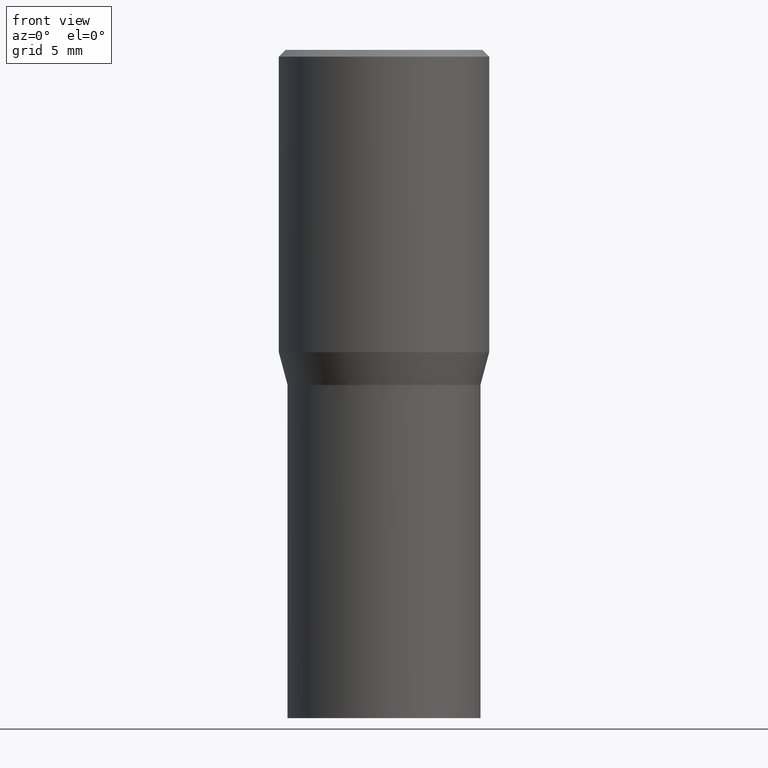
[diagram: clean part render]
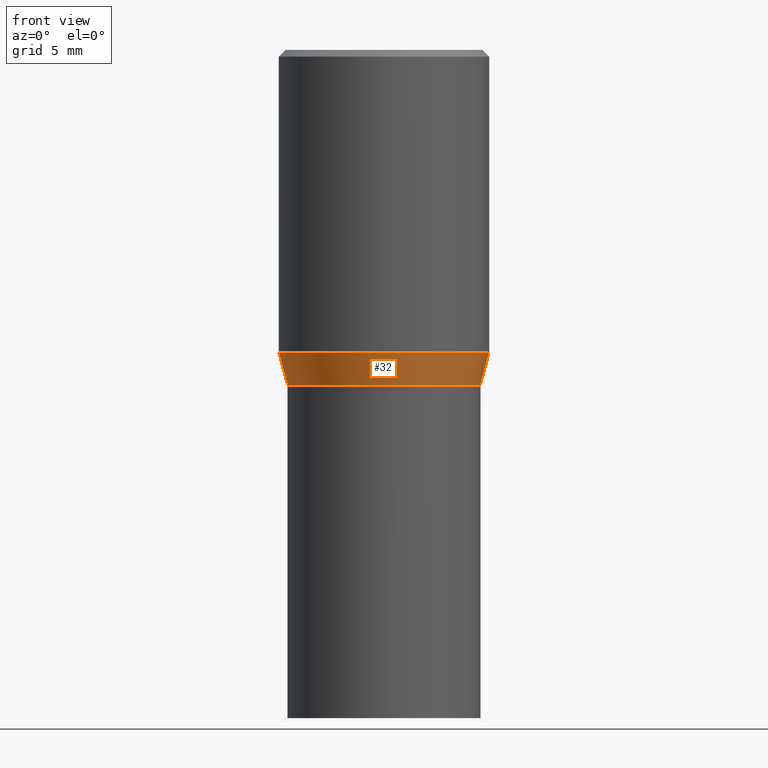
[diagram: same view with one face highlighted and labeled with its STEP entity id]
A machine part, front view. The second image highlights one B-rep face of the part: STEP entity #32.
In plain terms, the highlighted conical surface has half-angle 15 deg.
Its self-contained STEP definition (entity closure, byte-faithful):
#32 = ADVANCED_FACE ( 'NONE', ( #374 ), #70, .T. ) ;
#48 = ORIENTED_EDGE ( 'NONE', *, *, #166, .F. ) ;
#65 = EDGE_CURVE ( 'NONE', #447, #304, #174, .T. ) ;
#70 = CONICAL_SURFACE ( 'NONE', #397, 0.2165500000000000203, 0.2617993877991505736 ) ;
#83 = ORIENTED_EDGE ( 'NONE', *, *, #423, .F. ) ;
#85 = DIRECTION ( 'NONE',  ( -2.445468806185136597E-29, 3.491481338843145583E-15, 1.000000000000000000 ) ) ;
#121 = VECTOR ( 'NONE', #127, 39.37007874015748143 ) ;
#125 = DIRECTION ( 'NONE',  ( 1.000000000000000000, -6.982962677686266711E-15, 0.000000000000000000 ) ) ;
#127 = DIRECTION ( 'NONE',  ( -0.2588190451025218497, 5.211531920934553408E-15, 0.9659258262890679791 ) ) ;
#136 = DIRECTION ( 'NONE',  ( -2.445468806185136597E-29, 3.491481338843145583E-15, 1.000000000000000000 ) ) ;
#143 = CARTESIAN_POINT ( 'NONE',  ( 1.659654580432621677E-29, -2.369546886817807077E-15, -0.6786652016312719748 ) ) ;
#164 = LINE ( 'NONE', #440, #121 ) ;
#166 = EDGE_CURVE ( 'NONE', #448, #304, #183, .T. ) ;
#168 = CARTESIAN_POINT ( 'NONE',  ( 1.838992542251222813E-29, -2.625593966810045497E-15, -0.7520000000000001128 ) ) ;
#172 = DIRECTION ( 'NONE',  ( 1.000000000000000000, -6.982962677686266711E-15, 0.000000000000000000 ) ) ;
#174 = LINE ( 'NONE', #207, #281 ) ;
#181 = CARTESIAN_POINT ( 'NONE',  ( -0.2165500000000000203, -8.890793087369993447E-16, -0.7520000000000001128 ) ) ;
#183 = CIRCLE ( 'NONE', #325, 0.2361999999999999933 ) ;
#195 = VERTEX_POINT ( 'NONE', #181 ) ;
#197 = ORIENTED_EDGE ( 'NONE', *, *, #65, .T. ) ;
#199 = EDGE_LOOP ( 'NONE', ( #83, #341, #197, #48 ) ) ;
#207 = CARTESIAN_POINT ( 'NONE',  ( 0.2165500000000000203, -4.137754534663007109E-15, -0.7520000000000001128 ) ) ;
#218 = DIRECTION ( 'NONE',  ( 1.000000000000000000, -6.982962677686266711E-15, 0.000000000000000000 ) ) ;
#233 = CIRCLE ( 'NONE', #251, 0.2165500000000000203 ) ;
#251 = AXIS2_PLACEMENT_3D ( 'NONE', #299, #85, #125 ) ;
#281 = VECTOR ( 'NONE', #377, 39.37007874015748143 ) ;
#290 = DIRECTION ( 'NONE',  ( -2.445468806185136597E-29, 3.491481338843145583E-15, 1.000000000000000000 ) ) ;
#299 = CARTESIAN_POINT ( 'NONE',  ( 1.838992542251222813E-29, -2.625593966810045497E-15, -0.7520000000000001128 ) ) ;
#304 = VERTEX_POINT ( 'NONE', #429 ) ;
#318 = EDGE_CURVE ( 'NONE', #195, #447, #233, .T. ) ;
#325 = AXIS2_PLACEMENT_3D ( 'NONE', #143, #290, #218 ) ;
#341 = ORIENTED_EDGE ( 'NONE', *, *, #318, .T. ) ;
#347 = CARTESIAN_POINT ( 'NONE',  ( 0.2165500000000000203, -4.137754534663007109E-15, -0.7520000000000001128 ) ) ;
#370 = CARTESIAN_POINT ( 'NONE',  ( -0.2361999999999999933, -6.912449449524502887E-16, -0.6786652016312719748 ) ) ;
#374 = FACE_OUTER_BOUND ( 'NONE', #199, .T. ) ;
#377 = DIRECTION ( 'NONE',  ( 0.2588190451025218497, 1.565188264969618221E-15, 0.9659258262890679791 ) ) ;
#397 = AXIS2_PLACEMENT_3D ( 'NONE', #168, #136, #172 ) ;
#423 = EDGE_CURVE ( 'NONE', #195, #448, #164, .T. ) ;
#429 = CARTESIAN_POINT ( 'NONE',  ( 0.2361999999999999933, -4.018922671287303208E-15, -0.6786652016312719748 ) ) ;
#440 = CARTESIAN_POINT ( 'NONE',  ( -0.2165500000000000203, -1.086913672521548598E-15, -0.7520000000000001128 ) ) ;
#447 = VERTEX_POINT ( 'NONE', #347 ) ;
#448 = VERTEX_POINT ( 'NONE', #370 ) ;